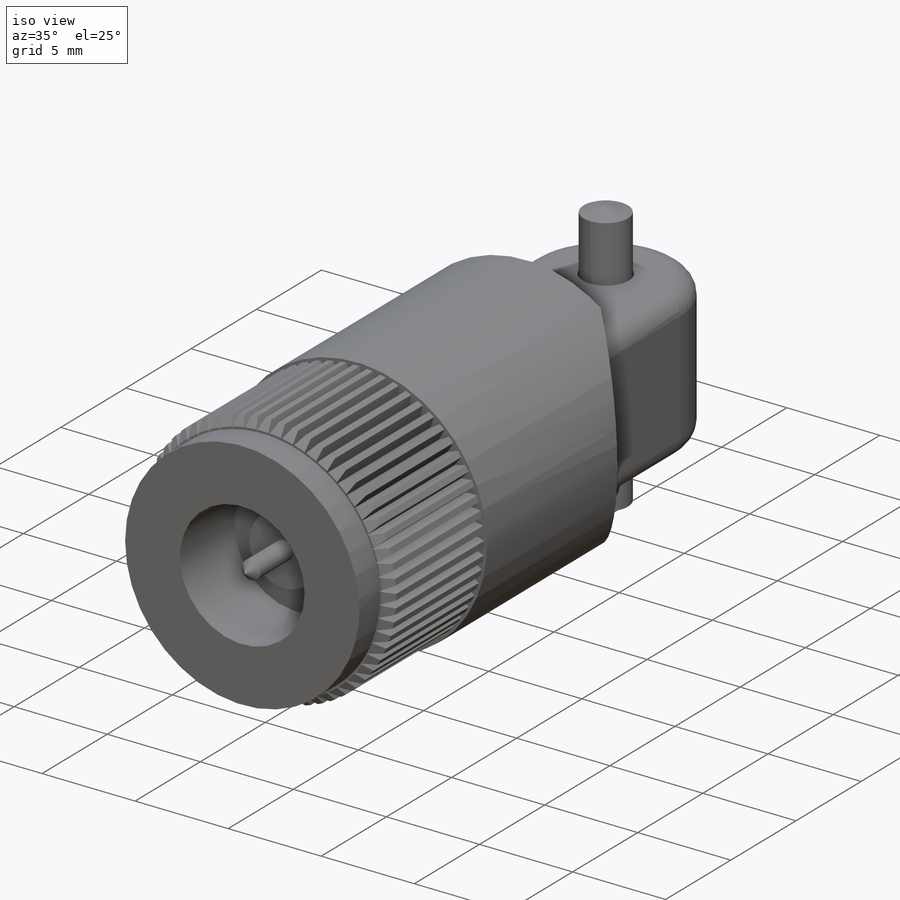
[diagram: iso view]
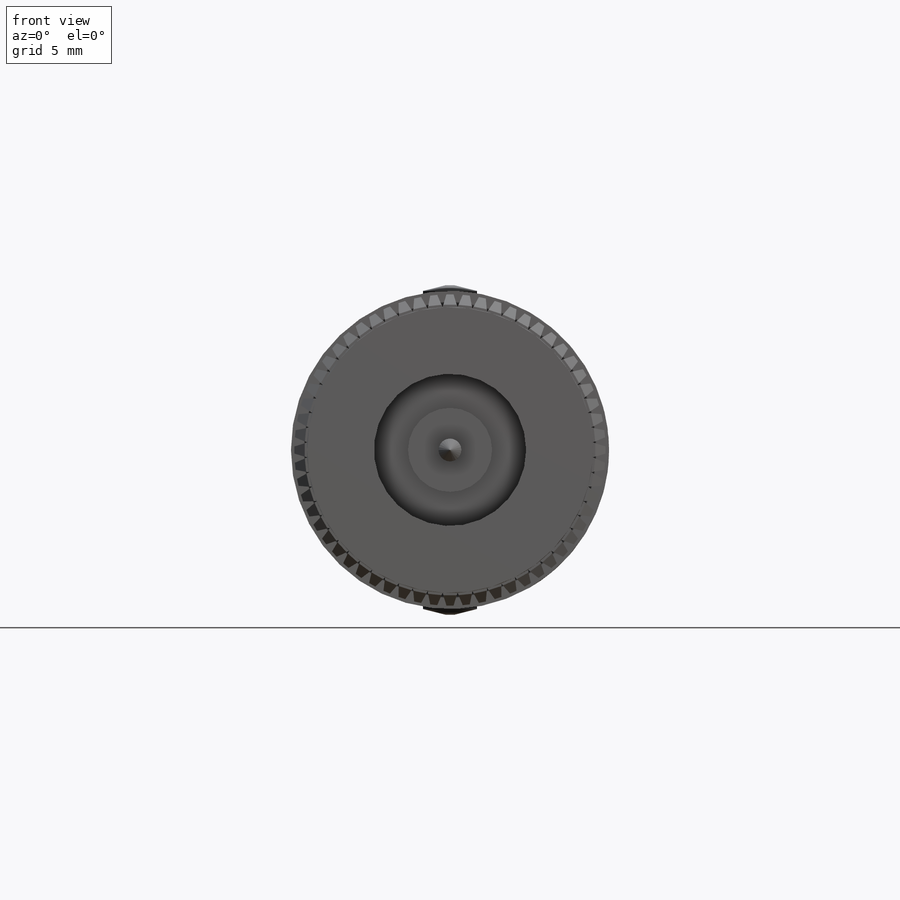
[diagram: front view]
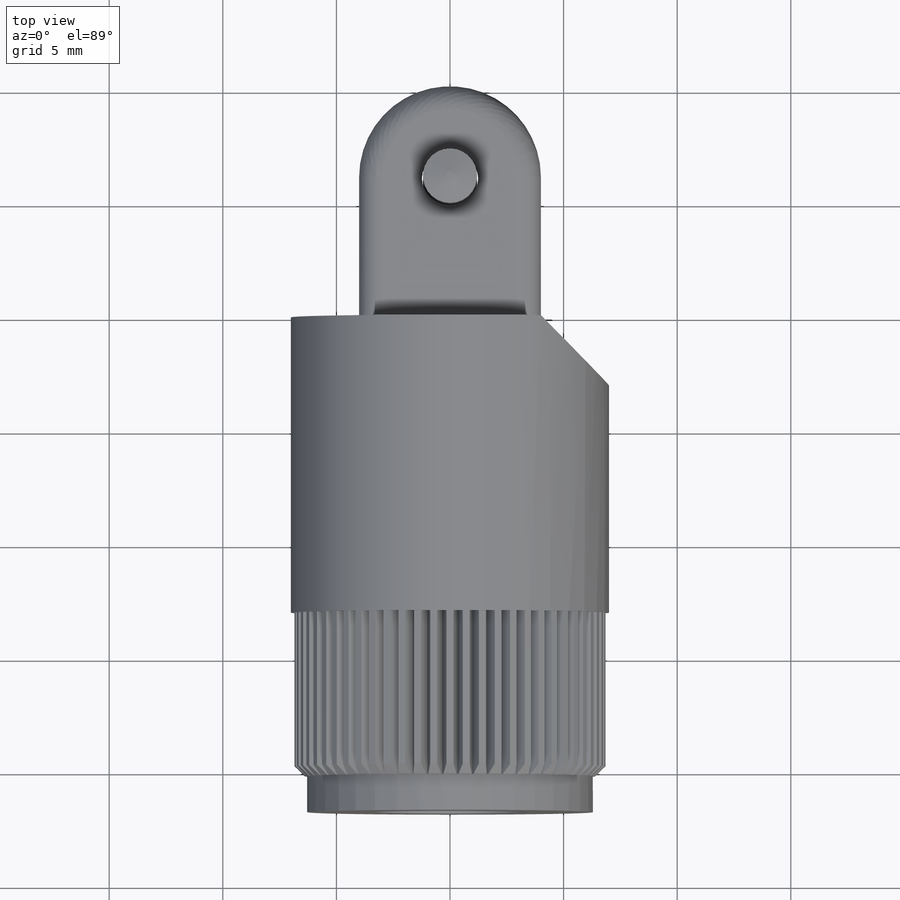
[diagram: top view]
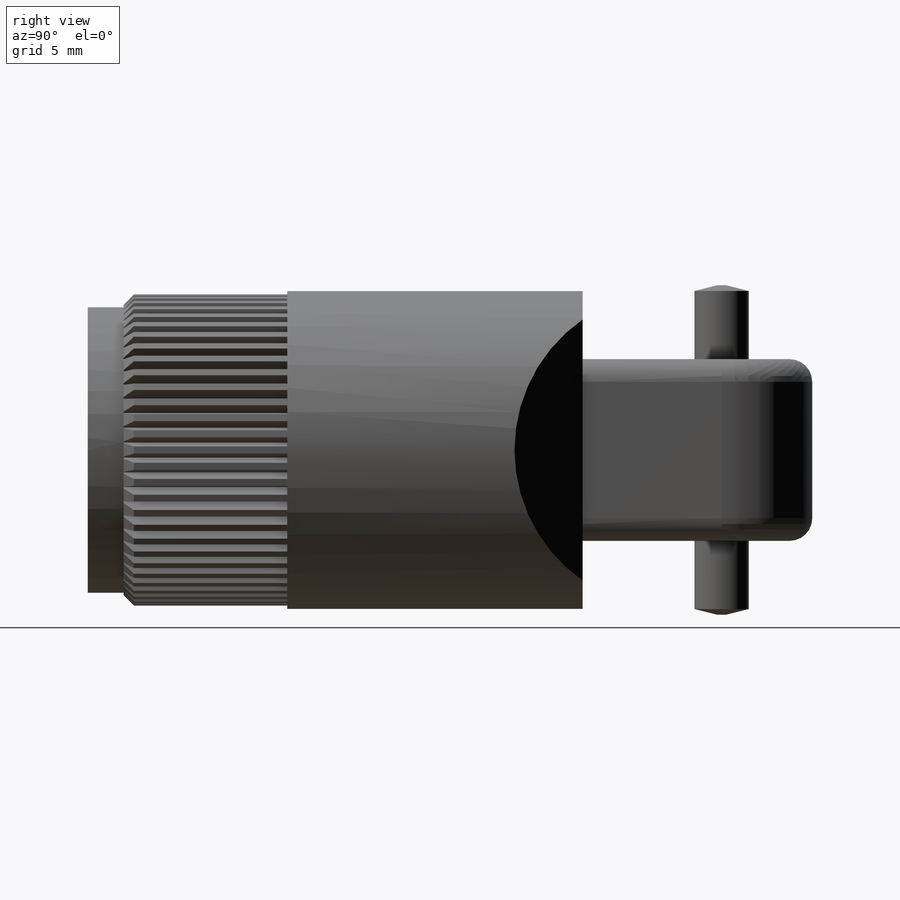
[diagram: right view]
SOLIDWORKS PART (.sldprt)
format: sldprt  version: not decoded by parser v0  size: 523,776 bytes
history: native  units: mm
features: sketch x10, extrude x7, chamfer x4, cut_extrude x3, material x1, pattern_circular x1, fillet x1 (+12 scaffold rows collapsed)
feature tree (39):
  scaffold x12  (default folders/planes/origin — collapsed)
  material  "Material <not specified>"
  sketch  "Sketch1"  dims[D1=14.0mm]
  extrude  "Boss-Extrude1"  Depth=13mm
  sketch  "Sketch2"  dims[c1.D1=~6.143405mm c2.D1=45.0deg c2.D2=3.0mm]
  cut_extrude  "Cut-Extrude1"  Depth=13mm
  sketch  "Sketch3"  dims[D1=2.5mm]
  extrude  "Boss-Extrude2"  Depth=4mm
  sketch  "Sketch4"  dims[D1=13.7mm]
  extrude  "Boss-Extrude3"  Depth=7.2mm
  sketch  "Sketch5"  dims[D1=12.58mm]
  extrude  "Boss-Extrude4"  Depth=1.58mm
  chamfer  "Chamfer1"  Distance=0.45mm Angle=45deg
  sketch  "Sketch6"  dims[c1.D1=~8.246405mm c2.D1=6.0deg c2.D2=~0.56862mm c3.D2=40.0deg]
  cut_extrude  "Cut-Extrude2"  [1 undecoded]
  pattern_circular  "CirPattern1"  Count=60 Angle=360deg
  fillet  "Fillet1"  Radius=1mm
  sketch  "Sketch7"  dims[D1=6.7mm]
  cut_extrude  "Cut-Extrude3"  Depth=4.18mm
  sketch  "Sketch8"  dims[D1=3.7mm]
  extrude  "Boss-Extrude5"  Depth=1mm
  sketch  "Sketch9"  dims[D1=1.0mm]
  extrude  "Boss-Extrude6"  Depth=3mm
  chamfer  "Chamfer2"  Distance=0.5mm Angle=45deg
  sketch  "Sketch10"
  extrude  "Boss-Extrude7"  Depth=7.25mm
  chamfer  "Chamfer3"  Distance=0.25mm
  chamfer  "Chamfer4"  Distance=1mm
decode coverage: 24 of 26 modeling features carry decoded parameters
note: ~ marks probable driven/reference dimensions
note: 1 parameter value undecoded
note: suppression state not decoded; provenance and decode notes live in map.json
